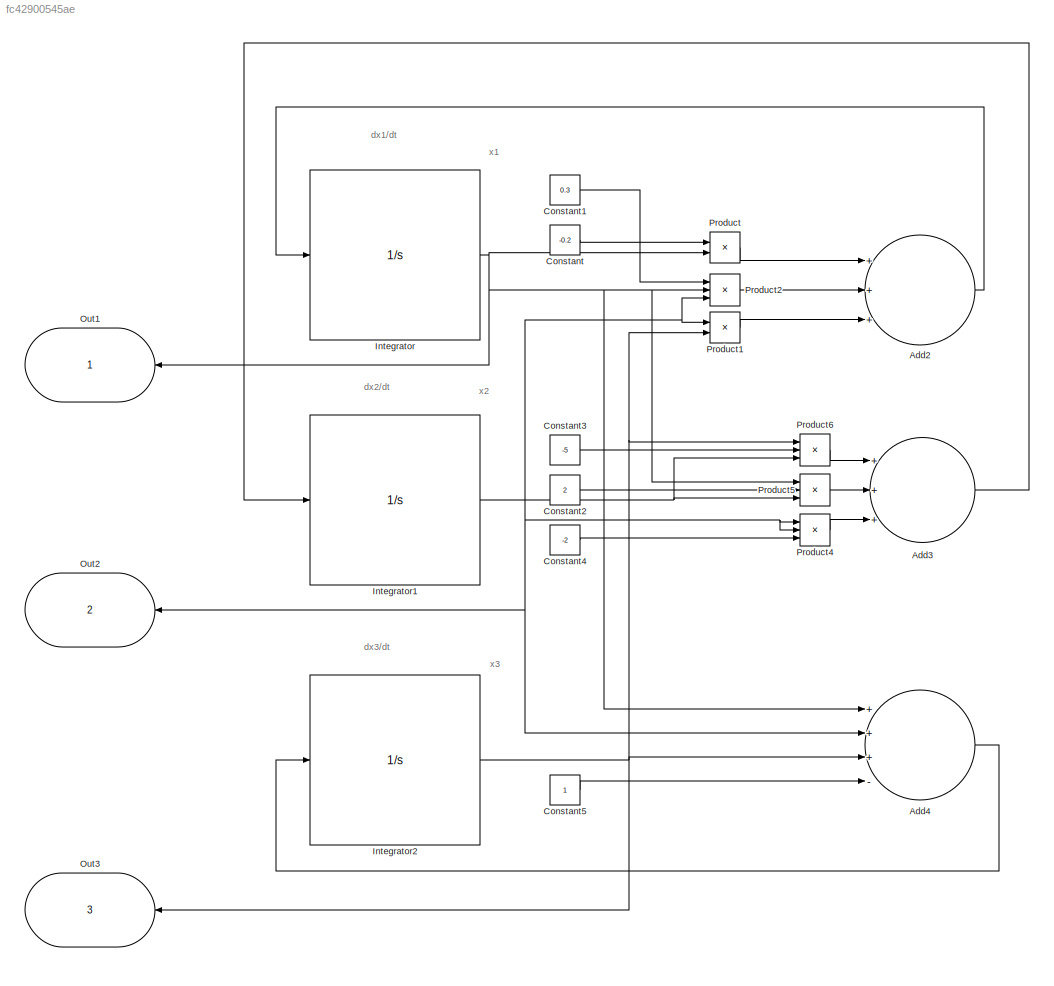
MODEL slx_fc42900545ae
KIND model
CONFIG AbsTol = auto
CONFIG EnableMultiTasking = off
CONFIG FixedStep = auto
CONFIG MaxStep = auto
CONFIG MinStep = auto
CONFIG RelTol = 1e-3
CONFIG SampleTimeConstraint = Unconstrained
CONFIG Solver = ode45
CONFIG SolverName = ode45
CONFIG StartTime = 0.0
CONFIG StopTime = 8
BLOCK [Sum] Add2
  InputSameDT = off
  Inputs = +++
  OutDataTypeStr = Inherit: Inherit via internal rule
  Ports = [3, 1]
  SaturateOnIntegerOverflow = off
BLOCK [Sum] Add3
  InputSameDT = off
  Inputs = +++
  OutDataTypeStr = Inherit: Inherit via internal rule
  Ports = [3, 1]
  SaturateOnIntegerOverflow = off
BLOCK [Sum] Add4
  InputSameDT = off
  Inputs = +++-
  OutDataTypeStr = Inherit: Inherit via internal rule
  Ports = [4, 1]
  SaturateOnIntegerOverflow = off
BLOCK [Constant] Constant
  Value = -0.2
BLOCK [Constant] Constant1
  Value = 0.3
BLOCK [Constant] Constant2
  Value = 2
BLOCK [Constant] Constant3
  Value = -5
BLOCK [Constant] Constant4
  Value = -2
BLOCK [Constant] Constant5
BLOCK [Integrator] Integrator
  InitialCondition = 0.8
  Ports = [1, 1]
BLOCK [Integrator] Integrator1
  InitialCondition = 0.1
  Ports = [1, 1]
BLOCK [Integrator] Integrator2
  InitialCondition = 0.1
  Ports = [1, 1]
BLOCK [Outport] Out1
  IconDisplay = Port number
BLOCK [Outport] Out2
  IconDisplay = Port number
  Port = 2
BLOCK [Outport] Out3
  IconDisplay = Port number
  Port = 3
BLOCK [Product] Product
  InputSameDT = off
  OutDataTypeStr = Inherit: Inherit via internal rule
  Ports = [2, 1]
  RndMeth = Floor
  SaturateOnIntegerOverflow = off
BLOCK [Product] Product1
  InputSameDT = off
  OutDataTypeStr = Inherit: Inherit via internal rule
  Ports = [2, 1]
  RndMeth = Floor
  SaturateOnIntegerOverflow = off
BLOCK [Product] Product2
  InputSameDT = off
  Inputs = 3
  OutDataTypeStr = Inherit: Inherit via internal rule
  Ports = [3, 1]
  RndMeth = Floor
  SaturateOnIntegerOverflow = off
BLOCK [Product] Product4
  InputSameDT = off
  Inputs = 3
  OutDataTypeStr = Inherit: Inherit via internal rule
  Ports = [3, 1]
  RndMeth = Floor
  SaturateOnIntegerOverflow = off
BLOCK [Product] Product5
  InputSameDT = off
  Inputs = 3
  OutDataTypeStr = Inherit: Inherit via internal rule
  Ports = [3, 1]
  RndMeth = Floor
  SaturateOnIntegerOverflow = off
BLOCK [Product] Product6
  InputSameDT = off
  Inputs = 3
  OutDataTypeStr = Inherit: Inherit via internal rule
  Ports = [3, 1]
  RndMeth = Floor
  SaturateOnIntegerOverflow = off
ANNOTATION (root): dx1/dt
ANNOTATION (root): dx2/dt
ANNOTATION (root): dx3/dt
ANNOTATION (root): x1
ANNOTATION (root): x2
ANNOTATION (root): x3
LINE Add2:1 -> Integrator:1
LINE Add3:1 -> Integrator1:1
LINE Add4:1 -> Integrator2:1
LINE Constant1:1 -> Product2:1
LINE Constant2:1 -> Product5:2
LINE Constant3:1 -> Product6:2
LINE Constant4:1 -> Product4:3
LINE Constant5:1 -> Add4:4
LINE Constant:1 -> Product:1
NET Integrator1:1 -> Add4:2, Out2:1, Product1:1, Product2:3, Product4:1, Product4:2, Product5:3, Product6:3
NET Integrator2:1 -> Add4:3, Out3:1, Product1:2, Product6:1
NET Integrator:1 -> Add4:1, Out1:1, Product2:2, Product5:1, Product:2
LINE Product1:1 -> Add2:3
LINE Product2:1 -> Add2:2
LINE Product4:1 -> Add3:3
LINE Product5:1 -> Add3:2
LINE Product6:1 -> Add3:1
LINE Product:1 -> Add2:1
note: NET lines group one-source signal fan-out (src -> all destinations, sorted); 1:1 wires keep LINE
